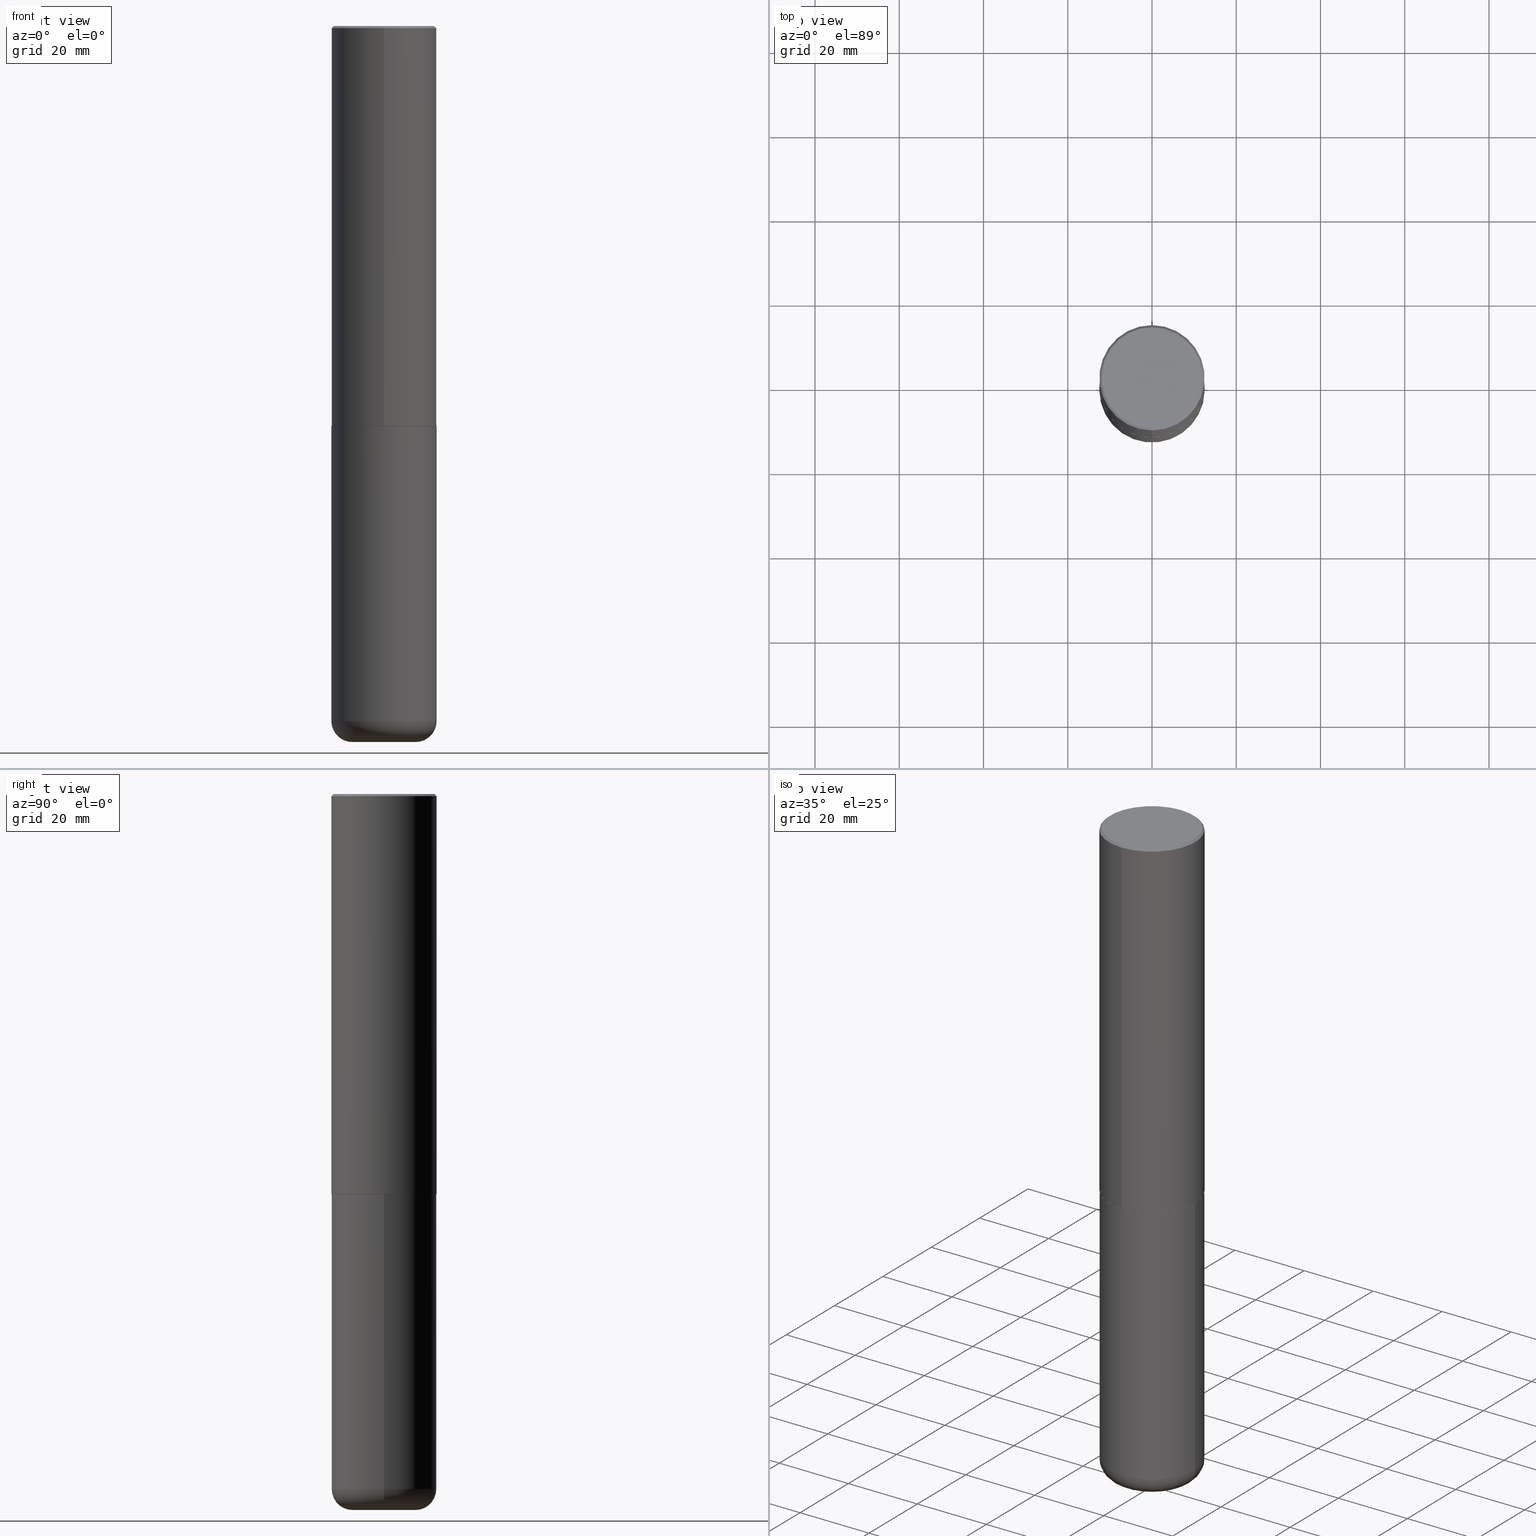
[diagram: canonical four-view strip — front | top / right | iso, engineering-drawing reading convention]
A machine part, canonical four-view strip (front | top / right | iso — engineering-drawing reading convention). The complete STEP part file that produces these views, byte-faithful:
ISO-10303-21;
HEADER;
FILE_DESCRIPTION (( 'STEP AP203' ),
    '1' );
FILE_NAME ('47634.STEP',
    '2024-03-06T19:44:02',
    ( '' ),
    ( '' ),
    'SwSTEP 2.0',
    'SolidWorks 2023',
    '' );
FILE_SCHEMA (( 'CONFIG_CONTROL_DESIGN' ));
ENDSEC;

DATA;
#1 = EDGE_CURVE ( 'NONE', #43, #233, #223, .T. ) ;
#2 = ORIENTED_EDGE ( 'NONE', *, *, #114, .F. ) ;
#3 = DIRECTION ( 'NONE',  ( -2.445976594451651392E-29, 3.490754157143982552E-15, 1.000000000000000000 ) ) ;
#4 = UNCERTAINTY_MEASURE_WITH_UNIT (LENGTH_MEASURE( 1.000000000000000082E-05 ), #309, 'distance_accuracy_value', 'NONE');
#5 = CIRCLE ( 'NONE', #406, 0.2952500000000000124 ) ;
#6 = ORGANIZATION ( 'UNSPECIFIED', 'UNSPECIFIED', '' ) ;
#7 = CARTESIAN_POINT ( 'NONE',  ( 9.148197060908621523E-29, -1.305576962313420868E-14, -3.740099999999999980 ) ) ;
#8 = FACE_OUTER_BOUND ( 'NONE', #382, .T. ) ;
#9 = DIRECTION ( 'NONE',  ( -6.982962677686265922E-15, -1.000000000000000000, 3.330506545156063496E-15 ) ) ;
#10 = ORIENTED_EDGE ( 'NONE', *, *, #184, .T. ) ;
#11 = ORIENTED_EDGE ( 'NONE', *, *, #386, .F. ) ;
#12 = CYLINDRICAL_SURFACE ( 'NONE', #215, 0.4921500000000000874 ) ;
#13 = CARTESIAN_POINT ( 'NONE',  ( 1.636727817291649742E-28, -2.336813545274328465E-14, -6.692899999999998961 ) ) ;
#14 = EDGE_LOOP ( 'NONE', ( #294, #394, #11, #298 ) ) ;
#15 = CLOSED_SHELL ( 'NONE', ( #95, #295, #18, #105, #227, #170 ) ) ;
#16 = FACE_OUTER_BOUND ( 'NONE', #76, .T. ) ;
#17 = CC_DESIGN_APPROVAL ( #63, ( #232 ) ) ;
#18 = ADVANCED_FACE ( 'NONE', ( #194 ), #73, .F. ) ;
#19 = EDGE_LOOP ( 'NONE', ( #254, #106, #195, #122 ) ) ;
#20 = CARTESIAN_POINT ( 'NONE',  ( 0.4921499999999999764, -3.436665081823295777E-15, 2.399810400207969603E-29 ) ) ;
#21 = FACE_OUTER_BOUND ( 'NONE', #152, .T. ) ;
#22 = CIRCLE ( 'NONE', #93, 0.4921499999999999764 ) ;
#23 = LOCAL_TIME ( 14, 44, 2.000000000000000000, #313 ) ;
#24 = CALENDAR_DATE ( 2024, 6, 3 ) ;
#25 = ADVANCED_FACE ( 'NONE', ( #381 ), #107, .T. ) ;
#26 = APPROVAL_DATE_TIME ( #405, #63 ) ;
#27 = LINE ( 'NONE', #126, #310 ) ;
#28 = MECHANICAL_CONTEXT ( 'NONE', #99, 'mechanical' ) ;
#29 = AXIS2_PLACEMENT_3D ( 'NONE', #48, #411, #190 ) ;
#30 = EDGE_CURVE ( 'NONE', #164, #166, #413, .T. ) ;
#31 = PERSON_AND_ORGANIZATION ( #96, #6 ) ;
#32 = DIRECTION ( 'NONE',  ( 1.000000000000000000, -6.982962677686264344E-15, 4.883557194083111780E-29 ) ) ;
#33 = DIRECTION ( 'NONE',  ( -2.445976594451651952E-29, 3.490754157143982552E-15, 1.000000000000000000 ) ) ;
#34 = DIRECTION ( 'NONE',  ( 6.982962677686265922E-15, 1.000000000000000000, -3.486624039460257331E-15 ) ) ;
#35 = AXIS2_PLACEMENT_3D ( 'NONE', #110, #148, #203 ) ;
#36 = SECURITY_CLASSIFICATION ( '', '', #130 ) ;
#37 = CC_DESIGN_PERSON_AND_ORGANIZATION_ASSIGNMENT ( #31, #163, ( #247 ) ) ;
#38 = DIRECTION ( 'NONE',  ( -2.445468806185136597E-29, 3.491481338843145583E-15, 1.000000000000000000 ) ) ;
#39 = ORIENTED_EDGE ( 'NONE', *, *, #386, .T. ) ;
#40 = AXIS2_PLACEMENT_3D ( 'NONE', #401, #210, #117 ) ;
#41 = ORIENTED_EDGE ( 'NONE', *, *, #123, .F. ) ;
#42 = ADVANCED_FACE ( 'NONE', ( #8 ), #157, .T. ) ;
#43 = VERTEX_POINT ( 'NONE', #62 ) ;
#44 = ORIENTED_EDGE ( 'NONE', *, *, #397, .T. ) ;
#45 = DIRECTION ( 'NONE',  ( -6.982962677686265922E-15, -1.000000000000000000, 3.490754157143982552E-15 ) ) ;
#46 = ORIENTED_EDGE ( 'NONE', *, *, #123, .T. ) ;
#47 = PLANE ( 'NONE',  #379 ) ;
#48 = CARTESIAN_POINT ( 'NONE',  ( 0.000000000000000000, 0.000000000000000000, 0.000000000000000000 ) ) ;
#49 = CARTESIAN_POINT ( 'NONE',  ( 9.145751084314172604E-29, -1.305227886897706845E-14, -3.739100000000000534 ) ) ;
#50 = AXIS2_PLACEMENT_3D ( 'NONE', #102, #100, #225 ) ;
#51 = DIRECTION ( 'NONE',  ( -6.982962677686265922E-15, -1.000000000000000000, 3.490754157143982552E-15 ) ) ;
#52 = CARTESIAN_POINT ( 'NONE',  ( 0.000000000000000000, 0.000000000000000000, 0.000000000000000000 ) ) ;
#53 = DIRECTION ( 'NONE',  ( -6.982962677686265922E-15, -1.000000000000000000, 3.330506545156063496E-15 ) ) ;
#54 = PERSON_AND_ORGANIZATION ( #96, #6 ) ;
#55 = CIRCLE ( 'NONE', #165, 0.4911499999999999755 ) ;
#56 = PRODUCT_DEFINITION_SHAPE ( 'NONE', 'NONE',  #232 ) ;
#57 = ORIENTED_EDGE ( 'NONE', *, *, #131, .F. ) ;
#58 = APPROVAL_DATE_TIME ( #344, #84 ) ;
#59 = CIRCLE ( 'NONE', #207, 0.4921500000000003650 ) ;
#60 = FACE_OUTER_BOUND ( 'NONE', #392, .T. ) ;
#61 = PRODUCT_DEFINITION_FORMATION_WITH_SPECIFIED_SOURCE ( 'ANY', '', #247, .NOT_KNOWN. ) ;
#62 = CARTESIAN_POINT ( 'NONE',  ( 3.436665081823295777E-15, 0.4921499999999998098, -0.02000000000000182188 ) ) ;
#63 = APPROVAL ( #183, 'UNSPECIFIED' ) ;
#64 = DIRECTION ( 'NONE',  ( -6.982962677686265922E-15, -1.000000000000000000, 3.486624039460257331E-15 ) ) ;
#65 = VECTOR ( 'NONE', #90, 39.37007874015748143 ) ;
#66 = CARTESIAN_POINT ( 'NONE',  ( 1.588576536497864771E-28, -2.268066277712507367E-14, -6.495999999999999552 ) ) ;
#67 = EDGE_CURVE ( 'NONE', #127, #233, #228, .T. ) ;
#68 = CARTESIAN_POINT ( 'NONE',  ( 9.146297882013029477E-29, -1.305848935540725085E-14, -3.740100000000000424 ) ) ;
#69 = EDGE_CURVE ( 'NONE', #352, #141, #272, .T. ) ;
#70 = ORIENTED_EDGE ( 'NONE', *, *, #69, .T. ) ;
#71 = CARTESIAN_POINT ( 'NONE',  ( 3.366835455046432084E-15, 0.4721499999999996255, -1.426540264649568516E-15 ) ) ;
#72 = ORIENTED_EDGE ( 'NONE', *, *, #263, .T. ) ;
#73 = PLANE ( 'NONE',  #326 ) ;
#74 = CIRCLE ( 'NONE', #245, 0.4911499999999999755 ) ;
#75 = CARTESIAN_POINT ( 'NONE',  ( -5.420756467185317189E-45, 7.736185299407739239E-31, 2.216193106459615290E-16 ) ) ;
#76 = EDGE_LOOP ( 'NONE', ( #44, #46 ) ) ;
#77 = LOCAL_TIME ( 14, 44, 2.000000000000000000, #249 ) ;
#78 = CARTESIAN_POINT ( 'NONE',  ( 9.146297882013029477E-29, -1.305848935540725085E-14, -3.740100000000000424 ) ) ;
#79 = ORIENTED_EDGE ( 'NONE', *, *, #397, .F. ) ;
#80 = FACE_OUTER_BOUND ( 'NONE', #336, .T. ) ;
#81 = CARTESIAN_POINT ( 'NONE',  ( 3.366467196184149442E-28, 1.402716959511487627E-15, -6.692899999999999849 ) ) ;
#82 = EDGE_LOOP ( 'NONE', ( #361, #160, #70, #282 ) ) ;
#83 =( LENGTH_UNIT ( ) NAMED_UNIT ( * ) SI_UNIT ( $, .METRE. ) );
#84 = APPROVAL ( #340, 'UNSPECIFIED' ) ;
#85 = CARTESIAN_POINT ( 'NONE',  ( -0.4921499999999999764, -1.437263999222282936E-14, -3.740100000000000424 ) ) ;
#86 = DIRECTION ( 'NONE',  ( -2.445468806185136597E-29, 3.491481338843145583E-15, 1.000000000000000000 ) ) ;
#87 = AXIS2_PLACEMENT_3D ( 'NONE', #121, #261, #322 ) ;
#88 = ORIENTED_EDGE ( 'NONE', *, *, #142, .F. ) ;
#89 = DIRECTION ( 'NONE',  ( -2.445976594451651952E-29, 3.490754157143982552E-15, 1.000000000000000000 ) ) ;
#90 = DIRECTION ( 'NONE',  ( -2.445976594451651672E-29, 3.490754157143982552E-15, 1.000000000000000000 ) ) ;
#91 = CARTESIAN_POINT ( 'NONE',  ( 1.588576536497864771E-28, -2.268066277712507367E-14, -6.495999999999999552 ) ) ;
#92 = ORIENTED_EDGE ( 'NONE', *, *, #318, .T. ) ;
#93 = AXIS2_PLACEMENT_3D ( 'NONE', #78, #328, #395 ) ;
#94 = PERSON_AND_ORGANIZATION ( #96, #6 ) ;
#95 = ADVANCED_FACE ( 'NONE', ( #21 ), #274, .T. ) ;
#96 = PERSON ( 'UNSPECIFIED', 'UNSPECIFIED', 'UNSPECIFIED', ('UNSPECIFIED'), ('UNSPECIFIED'), ('UNSPECIFIED') ) ;
#97 = PERSON_AND_ORGANIZATION_ROLE ( 'creator' ) ;
#98 = CIRCLE ( 'NONE', #327, 0.4921499999999999764 ) ;
#99 = APPLICATION_CONTEXT ( 'configuration controlled 3d designs of mechanical parts and assemblies' ) ;
#100 = DIRECTION ( 'NONE',  ( 2.445976594451651952E-29, -3.490754157143982552E-15, -1.000000000000000000 ) ) ;
#101 = EDGE_CURVE ( 'NONE', #352, #109, #187, .T. ) ;
#102 = CARTESIAN_POINT ( 'NONE',  ( 4.891953188903329688E-31, -6.981508314288001687E-17, -0.02000000000000010797 ) ) ;
#103 = ORIENTED_EDGE ( 'NONE', *, *, #360, .F. ) ;
#104 = LOCAL_TIME ( 14, 44, 2.000000000000000000, #220 ) ;
#105 = ADVANCED_FACE ( 'NONE', ( #140 ), #331, .T. ) ;
#106 = ORIENTED_EDGE ( 'NONE', *, *, #250, .T. ) ;
#107 = CONICAL_SURFACE ( 'NONE', #305, 0.4911499999999999755, 0.7853981633980288146 ) ;
#108 = CIRCLE ( 'NONE', #119, 0.1968999999999995754 ) ;
#109 = VERTEX_POINT ( 'NONE', #209 ) ;
#110 = CARTESIAN_POINT ( 'NONE',  ( 0.000000000000000000, 0.000000000000000000, 0.000000000000000000 ) ) ;
#111 = FACE_OUTER_BOUND ( 'NONE', #230, .T. ) ;
#112 = CARTESIAN_POINT ( 'NONE',  ( 0.000000000000000000, 0.000000000000000000, 0.000000000000000000 ) ) ;
#113 = EDGE_LOOP ( 'NONE', ( #292, #72, #359, #325 ) ) ;
#114 = EDGE_CURVE ( 'NONE', #166, #164, #22, .T. ) ;
#115 = CARTESIAN_POINT ( 'NONE',  ( 1.588576536497864771E-28, -2.268066277712507367E-14, -6.495999999999999552 ) ) ;
#116 = CARTESIAN_POINT ( 'NONE',  ( -5.420756467185317189E-45, 7.736185299407739239E-31, 2.216193106459615290E-16 ) ) ;
#117 = DIRECTION ( 'NONE',  ( 6.982962677686265922E-15, 1.000000000000000000, -3.490754157143982552E-15 ) ) ;
#118 = ORIENTED_EDGE ( 'NONE', *, *, #177, .T. ) ;
#119 = AXIS2_PLACEMENT_3D ( 'NONE', #204, #180, #278 ) ;
#120 = FACE_OUTER_BOUND ( 'NONE', #404, .T. ) ;
#121 = CARTESIAN_POINT ( 'NONE',  ( 4.891953188903329688E-31, -6.981508314288001687E-17, -0.02000000000000010797 ) ) ;
#122 = ORIENTED_EDGE ( 'NONE', *, *, #1, .F. ) ;
#123 = EDGE_CURVE ( 'NONE', #275, #240, #350, .T. ) ;
#124 = PERSON_AND_ORGANIZATION ( #96, #6 ) ;
#125 = DATE_AND_TIME ( #410, #409 ) ;
#126 = CARTESIAN_POINT ( 'NONE',  ( 3.489830646685823002E-15, 0.4911499999999869304, -3.740100000000001312 ) ) ;
#127 = VERTEX_POINT ( 'NONE', #139 ) ;
#128 = PERSON_AND_ORGANIZATION ( #96, #6 ) ;
#129 = VECTOR ( 'NONE', #146, 39.37007874015748143 ) ;
#130 = SECURITY_CLASSIFICATION_LEVEL ( 'unclassified' ) ;
#131 = EDGE_CURVE ( 'NONE', #174, #166, #273, .T. ) ;
#132 = AXIS2_PLACEMENT_3D ( 'NONE', #66, #38, #222 ) ;
#133 = LOCAL_TIME ( 14, 44, 2.000000000000000000, #257 ) ;
#134 = CARTESIAN_POINT ( 'NONE',  ( 9.148197060908621523E-29, -1.305576962313420868E-14, -3.740099999999999980 ) ) ;
#135 = DIRECTION ( 'NONE',  ( -2.445468806185136597E-29, 3.491481338843145583E-15, 1.000000000000000000 ) ) ;
#136 = ORIENTED_EDGE ( 'NONE', *, *, #1, .T. ) ;
#137 = APPROVAL ( #283, 'UNSPECIFIED' ) ;
#138 = DIRECTION ( 'NONE',  ( -2.445468806185136877E-29, 3.491481338843145188E-15, 1.000000000000000000 ) ) ;
#139 = CARTESIAN_POINT ( 'NONE',  ( -3.436665081823207030E-15, -0.4921500000000134101, -3.739099999999998758 ) ) ;
#140 = FACE_OUTER_BOUND ( 'NONE', #300, .T. ) ;
#141 = VERTEX_POINT ( 'NONE', #268 ) ;
#142 = EDGE_CURVE ( 'NONE', #251, #353, #55, .T. ) ;
#143 = ORIENTED_EDGE ( 'NONE', *, *, #263, .F. ) ;
#144 = DIRECTION ( 'NONE',  ( -2.445976594451651952E-29, 3.490754157143982552E-15, 1.000000000000000000 ) ) ;
#145 = FACE_OUTER_BOUND ( 'NONE', #14, .T. ) ;
#146 = DIRECTION ( 'NONE',  ( -2.445468806185136877E-29, 3.491481338843145188E-15, 1.000000000000000000 ) ) ;
#147 = AXIS2_PLACEMENT_3D ( 'NONE', #262, #354, #64 ) ;
#148 = DIRECTION ( 'NONE',  ( -2.445976594451651952E-29, 3.490754157143982552E-15, 1.000000000000000000 ) ) ;
#149 = APPROVAL_PERSON_ORGANIZATION ( #124, #63, #408 ) ;
#150 = APPROVAL_ROLE ( '' ) ;
#151 = CARTESIAN_POINT ( 'NONE',  ( 9.148197060908621523E-29, -1.305576962313420868E-14, -3.740099999999999980 ) ) ;
#152 = EDGE_LOOP ( 'NONE', ( #39, #196, #202, #269 ) ) ;
#153 = DATE_TIME_ROLE ( 'creation_date' ) ;
#154 = CARTESIAN_POINT ( 'NONE',  ( -3.307789109625541747E-15, -0.4721499999999996255, 1.869778885941491673E-15 ) ) ;
#155 = CC_DESIGN_PERSON_AND_ORGANIZATION_ASSIGNMENT ( #316, #97, ( #232 ) ) ;
#156 = APPLICATION_PROTOCOL_DEFINITION ( 'international standard', 'config_control_design', 1994, #99 ) ;
#157 = CONICAL_SURFACE ( 'NONE', #50, 0.4921499999999999209, 0.7853981633974467247 ) ;
#158 = MANIFOLD_SOLID_BREP ( 'Body-Move/Copy2[1]', #15 ) ;
#159 = AXIS2_PLACEMENT_3D ( 'NONE', #301, #367, #208 ) ;
#160 = ORIENTED_EDGE ( 'NONE', *, *, #179, .T. ) ;
#161 = CARTESIAN_POINT ( 'NONE',  ( 9.148197060908621523E-29, -1.305576962313420868E-14, -3.740099999999999980 ) ) ;
#162 = FACE_OUTER_BOUND ( 'NONE', #82, .T. ) ;
#163 = PERSON_AND_ORGANIZATION_ROLE ( 'design_owner' ) ;
#164 = VERTEX_POINT ( 'NONE', #267 ) ;
#165 = AXIS2_PLACEMENT_3D ( 'NONE', #7, #242, #200 ) ;
#166 = VERTEX_POINT ( 'NONE', #85 ) ;
#167 = ORIENTED_EDGE ( 'NONE', *, *, #368, .F. ) ;
#168 = CARTESIAN_POINT ( 'NONE',  ( 3.493383360364624690E-15, 0.4911499999999869304, -3.740100000000001312 ) ) ;
#169 = DIRECTION ( 'NONE',  ( -6.982962677686265922E-15, -1.000000000000000000, 3.337287582609300506E-15 ) ) ;
#170 = ADVANCED_FACE ( 'NONE', ( #111 ), #47, .T. ) ;
#171 = DIRECTION ( 'NONE',  ( -1.000000000000000000, 6.982962677686265922E-15, -4.876176775795935793E-29 ) ) ;
#172 = ORIENTED_EDGE ( 'NONE', *, *, #67, .F. ) ;
#173 = CARTESIAN_POINT ( 'NONE',  ( -3.429682119145517860E-15, -0.4911500000000130206, -3.740099999999998204 ) ) ;
#174 = VERTEX_POINT ( 'NONE', #303 ) ;
#175 = AXIS2_PLACEMENT_3D ( 'NONE', #116, #297, #211 ) ;
#176 = CARTESIAN_POINT ( 'NONE',  ( 1.588576536497864771E-28, -2.268066277712507367E-14, -6.495999999999999552 ) ) ;
#177 = EDGE_CURVE ( 'NONE', #141, #164, #338, .T. ) ;
#178 = DIRECTION ( 'NONE',  ( 1.000000000000000000, -6.982962677686270655E-15, 0.000000000000000000 ) ) ;
#179 = EDGE_CURVE ( 'NONE', #109, #352, #5, .T. ) ;
#180 = DIRECTION ( 'NONE',  ( 7.105427357601001859E-15, 1.000000000000000000, -3.491481338843145583E-15 ) ) ;
#181 = AXIS2_PLACEMENT_3D ( 'NONE', #188, #260, #34 ) ;
#182 = PERSON_AND_ORGANIZATION ( #96, #6 ) ;
#183 = APPROVAL_STATUS ( 'not_yet_approved' ) ;
#184 = EDGE_CURVE ( 'NONE', #353, #127, #346, .T. ) ;
#185 = PERSON_AND_ORGANIZATION_ROLE ( 'classification_officer' ) ;
#186 = APPROVAL_ROLE ( '' ) ;
#187 = CIRCLE ( 'NONE', #159, 0.2952500000000000124 ) ;
#188 = CARTESIAN_POINT ( 'NONE',  ( 4.891953188903329688E-31, -6.981508314288001687E-17, -0.02000000000000010797 ) ) ;
#189 = PLANE ( 'NONE',  #279 ) ;
#190 = DIRECTION ( 'NONE',  ( 1.000000000000000000, -6.982962677686265922E-15, 4.876176775795935793E-29 ) ) ;
#191 = AXIS2_PLACEMENT_3D ( 'NONE', #91, #357, #362 ) ;
#192 = DIRECTION ( 'NONE',  ( -6.982962677686265922E-15, -1.000000000000000000, 3.337287582609300506E-15 ) ) ;
#193 = CC_DESIGN_PERSON_AND_ORGANIZATION_ASSIGNMENT ( #54, #255, ( #61 ) ) ;
#194 = FACE_OUTER_BOUND ( 'NONE', #229, .T. ) ;
#195 = ORIENTED_EDGE ( 'NONE', *, *, #67, .T. ) ;
#196 = ORIENTED_EDGE ( 'NONE', *, *, #131, .T. ) ;
#197 = CIRCLE ( 'NONE', #147, 0.4921499999999999209 ) ;
#198 = ADVANCED_FACE ( 'NONE', ( #60 ), #365, .T. ) ;
#199 = CARTESIAN_POINT ( 'NONE',  ( -3.376394089603257868E-15, -0.4921499999999999764, -0.01999999999999839059 ) ) ;
#200 = DIRECTION ( 'NONE',  ( -6.982962677686265922E-15, -1.000000000000000000, 3.337287582609300506E-15 ) ) ;
#201 = CARTESIAN_POINT ( 'NONE',  ( 0.2952499999999999569, -2.474238250771194590E-14, -6.495999999999999552 ) ) ;
#202 = ORIENTED_EDGE ( 'NONE', *, *, #30, .F. ) ;
#203 = DIRECTION ( 'NONE',  ( -6.982962677686265922E-15, -1.000000000000000000, 3.490754157143982552E-15 ) ) ;
#204 = CARTESIAN_POINT ( 'NONE',  ( -0.2952499999999999569, -2.058278534979337620E-14, -6.495999999999999552 ) ) ;
#205 = DIRECTION ( 'NONE',  ( 2.438088387897960049E-29, -3.491481338843145188E-15, -1.000000000000000000 ) ) ;
#206 = CC_DESIGN_DATE_AND_TIME_ASSIGNMENT ( #314, #311, ( #36 ) ) ;
#207 = AXIS2_PLACEMENT_3D ( 'NONE', #319, #299, #9 ) ;
#208 = DIRECTION ( 'NONE',  ( 1.000000000000000000, -6.982962677686273021E-15, 0.000000000000000000 ) ) ;
#209 = CARTESIAN_POINT ( 'NONE',  ( -0.2952500000000000124, -2.022699236424666989E-14, -6.692899999999998961 ) ) ;
#210 = DIRECTION ( 'NONE',  ( 2.445976594451651392E-29, -3.490754157143982552E-15, -1.000000000000000000 ) ) ;
#211 = DIRECTION ( 'NONE',  ( -6.982962677686265922E-15, -1.000000000000000000, 3.490754157143982946E-15 ) ) ;
#212 = DIRECTION ( 'NONE',  ( 1.000000000000000000, -6.982962677686265922E-15, 0.000000000000000000 ) ) ;
#213 = PERSON_AND_ORGANIZATION_ROLE ( 'creator' ) ;
#214 = ORIENTED_EDGE ( 'NONE', *, *, #179, .F. ) ;
#215 = AXIS2_PLACEMENT_3D ( 'NONE', #52, #393, #51 ) ;
#216 = CALENDAR_DATE ( 2024, 6, 3 ) ;
#217 = EDGE_CURVE ( 'NONE', #353, #251, #74, .T. ) ;
#218 = DIRECTION ( 'NONE',  ( 1.000000000000000000, 0.000000000000000000, 0.000000000000000000 ) ) ;
#219 = DIMENSIONAL_EXPONENTS ( 1.000000000000000000, 0.000000000000000000, 0.000000000000000000, 0.000000000000000000, 0.000000000000000000, 0.000000000000000000, 0.000000000000000000 ) ;
#220 = COORDINATED_UNIVERSAL_TIME_OFFSET ( 5, 0, .BEHIND. ) ;
#221 = EDGE_CURVE ( 'NONE', #233, #43, #197, .T. ) ;
#222 = DIRECTION ( 'NONE',  ( 1.000000000000000000, -6.982962677686265922E-15, 0.000000000000000000 ) ) ;
#223 = CIRCLE ( 'NONE', #87, 0.4921499999999999209 ) ;
#224 = CIRCLE ( 'NONE', #296, 0.4921500000000003650 ) ;
#225 = DIRECTION ( 'NONE',  ( 6.982962677686265922E-15, 1.000000000000000000, -3.486624039460257331E-15 ) ) ;
#226 = TOROIDAL_SURFACE ( 'NONE', #372, 0.2952499999999999569, 0.1968999999999996031 ) ;
#227 = ADVANCED_FACE ( 'NONE', ( #162 ), #226, .T. ) ;
#228 = LINE ( 'NONE', #277, #65 ) ;
#229 = EDGE_LOOP ( 'NONE', ( #243, #330 ) ) ;
#230 = EDGE_LOOP ( 'NONE', ( #321, #214 ) ) ;
#231 = DIRECTION ( 'NONE',  ( -2.445976594451651952E-29, 3.490754157143982552E-15, 1.000000000000000000 ) ) ;
#232 = PRODUCT_DEFINITION ( 'UNKNOWN', '', #61, #334 ) ;
#233 = VERTEX_POINT ( 'NONE', #317 ) ;
#234 = DIRECTION ( 'NONE',  ( -2.445468806185136597E-29, 3.491481338843145583E-15, 1.000000000000000000 ) ) ;
#235 =( NAMED_UNIT ( * ) PLANE_ANGLE_UNIT ( ) SI_UNIT ( $, .RADIAN. ) );
#236 = AXIS2_PLACEMENT_3D ( 'NONE', #68, #135, #415 ) ;
#237 = CARTESIAN_POINT ( 'NONE',  ( -0.4921499999999999764, 3.496936074043332897E-15, -2.420853904668951509E-29 ) ) ;
#238 = CC_DESIGN_APPROVAL ( #137, ( #36 ) ) ;
#239 = VERTEX_POINT ( 'NONE', #412 ) ;
#240 = VERTEX_POINT ( 'NONE', #71 ) ;
#241 = DIRECTION ( 'NONE',  ( -2.445976594451651672E-29, 3.490754157143982552E-15, 1.000000000000000000 ) ) ;
#242 = DIRECTION ( 'NONE',  ( -2.445976594451651952E-29, 3.490754157143982552E-15, 1.000000000000000000 ) ) ;
#243 = ORIENTED_EDGE ( 'NONE', *, *, #30, .T. ) ;
#244 = CARTESIAN_POINT ( 'NONE',  ( 3.496936074043333291E-15, 0.4921500000000000874, -1.717974658438411319E-15 ) ) ;
#245 = AXIS2_PLACEMENT_3D ( 'NONE', #161, #231, #192 ) ;
#246 = LINE ( 'NONE', #304, #347 ) ;
#247 = PRODUCT ( '47634', '47634', '', ( #28 ) ) ;
#248 = DIRECTION ( 'NONE',  ( 1.000000000000000000, -6.982962677686265922E-15, 4.876176775795935793E-29 ) ) ;
#249 = COORDINATED_UNIVERSAL_TIME_OFFSET ( 5, 0, .BEHIND. ) ;
#250 = EDGE_CURVE ( 'NONE', #239, #127, #59, .T. ) ;
#251 = VERTEX_POINT ( 'NONE', #168 ) ;
#252 = DATE_AND_TIME ( #374, #133 ) ;
#253 = DIRECTION ( 'NONE',  ( 5.024295867790978808E-15, 0.7071067811869604647, 0.7071067811861345698 ) ) ;
#254 = ORIENTED_EDGE ( 'NONE', *, *, #337, .F. ) ;
#255 = PERSON_AND_ORGANIZATION_ROLE ( 'design_supplier' ) ;
#256 = APPROVAL_PERSON_ORGANIZATION ( #94, #84, #186 ) ;
#257 = COORDINATED_UNIVERSAL_TIME_OFFSET ( 5, 0, .BEHIND. ) ;
#258 = CIRCLE ( 'NONE', #132, 0.4921499999999999764 ) ;
#259 = CC_DESIGN_APPROVAL ( #84, ( #61 ) ) ;
#260 = DIRECTION ( 'NONE',  ( 2.445976594451651952E-29, -3.490754157143982552E-15, -1.000000000000000000 ) ) ;
#261 = DIRECTION ( 'NONE',  ( -2.445976594451651952E-29, 3.490754157143982552E-15, 1.000000000000000000 ) ) ;
#262 = CARTESIAN_POINT ( 'NONE',  ( 4.891953188903329688E-31, -6.981508314288001687E-17, -0.02000000000000010797 ) ) ;
#263 = EDGE_CURVE ( 'NONE', #251, #239, #27, .T. ) ;
#264 = AXIS2_PLACEMENT_3D ( 'NONE', #276, #144, #169 ) ;
#265 = EDGE_LOOP ( 'NONE', ( #271, #88 ) ) ;
#266 = ORIENTED_EDGE ( 'NONE', *, *, #337, .T. ) ;
#267 = CARTESIAN_POINT ( 'NONE',  ( 0.4921499999999999764, -1.649515443723054663E-14, -3.740100000000000424 ) ) ;
#268 = CARTESIAN_POINT ( 'NONE',  ( 0.4921499999999997543, -2.611732785894836787E-14, -6.495999999999999552 ) ) ;
#269 = ORIENTED_EDGE ( 'NONE', *, *, #177, .F. ) ;
#270 = DIRECTION ( 'NONE',  ( 4.937700262164540154E-15, 0.7071067811865440200, -0.7071067811865511255 ) ) ;
#271 = ORIENTED_EDGE ( 'NONE', *, *, #217, .F. ) ;
#272 = CIRCLE ( 'NONE', #356, 0.1968999999999995754 ) ;
#273 = LINE ( 'NONE', #237, #320 ) ;
#274 = CYLINDRICAL_SURFACE ( 'NONE', #414, 0.4921499999999999764 ) ;
#275 = VERTEX_POINT ( 'NONE', #154 ) ;
#276 = CARTESIAN_POINT ( 'NONE',  ( 9.148197060908621523E-29, -1.305576962313420868E-14, -3.740099999999999980 ) ) ;
#277 = CARTESIAN_POINT ( 'NONE',  ( -3.436665081823296565E-15, -0.4921500000000000874, 1.717974658438411319E-15 ) ) ;
#278 = DIRECTION ( 'NONE',  ( -1.000000000000000000, 7.105427357601008170E-15, 0.000000000000000000 ) ) ;
#279 = AXIS2_PLACEMENT_3D ( 'NONE', #151, #3, #45 ) ;
#280 = DIRECTION ( 'NONE',  ( -2.445976594451651952E-29, 3.490754157143982552E-15, 1.000000000000000000 ) ) ;
#281 = ORIENTED_EDGE ( 'NONE', *, *, #221, .F. ) ;
#282 = ORIENTED_EDGE ( 'NONE', *, *, #290, .F. ) ;
#283 = APPROVAL_STATUS ( 'not_yet_approved' ) ;
#284 = TOROIDAL_SURFACE ( 'NONE', #191, 0.2952499999999999569, 0.1968999999999996031 ) ;
#285 = CC_DESIGN_PERSON_AND_ORGANIZATION_ASSIGNMENT ( #182, #185, ( #36 ) ) ;
#286 = COORDINATED_UNIVERSAL_TIME_OFFSET ( 5, 0, .BEHIND. ) ;
#287 = APPLICATION_PROTOCOL_DEFINITION ( 'international standard', 'config_control_design', 1994, #418 ) ;
#288 = DIRECTION ( 'NONE',  ( -4.937700262167413974E-15, -0.7071067811869555797, 0.7071067811861394548 ) ) ;
#289 = CONICAL_SURFACE ( 'NONE', #264, 0.4911499999999999755, 0.7853981633980288146 ) ;
#290 = EDGE_CURVE ( 'NONE', #174, #141, #258, .T. ) ;
#291 = MANIFOLD_SOLID_BREP ( 'Body-Move/Copy2[2]', #349 ) ;
#292 = ORIENTED_EDGE ( 'NONE', *, *, #217, .T. ) ;
#293 = ADVANCED_FACE ( 'NONE', ( #380 ), #189, .F. ) ;
#294 = ORIENTED_EDGE ( 'NONE', *, *, #101, .T. ) ;
#295 = ADVANCED_FACE ( 'NONE', ( #145 ), #284, .T. ) ;
#296 = AXIS2_PLACEMENT_3D ( 'NONE', #49, #280, #53 ) ;
#297 = DIRECTION ( 'NONE',  ( -2.445976594451651952E-29, 3.490754157143982552E-15, 1.000000000000000000 ) ) ;
#298 = ORIENTED_EDGE ( 'NONE', *, *, #69, .F. ) ;
#299 = DIRECTION ( 'NONE',  ( -2.445976594451651952E-29, 3.490754157143982552E-15, 1.000000000000000000 ) ) ;
#300 = EDGE_LOOP ( 'NONE', ( #57, #385, #118, #2 ) ) ;
#301 = CARTESIAN_POINT ( 'NONE',  ( 1.636727817291649742E-28, -2.336813545274328465E-14, -6.692899999999998961 ) ) ;
#302 = FACE_OUTER_BOUND ( 'NONE', #19, .T. ) ;
#303 = CARTESIAN_POINT ( 'NONE',  ( -0.4921499999999997543, -1.918372670308173998E-14, -6.495999999999999552 ) ) ;
#304 = CARTESIAN_POINT ( 'NONE',  ( 3.436665081823295777E-15, 0.4921499999999998098, -0.02000000000000182188 ) ) ;
#305 = AXIS2_PLACEMENT_3D ( 'NONE', #134, #33, #324 ) ;
#306 = ADVANCED_FACE ( 'NONE', ( #80 ), #289, .T. ) ;
#307 = LENGTH_MEASURE_WITH_UNIT ( LENGTH_MEASURE( 0.02539999999999999897 ), #83 );
#308 =( NAMED_UNIT ( * ) SI_UNIT ( $, .STERADIAN. ) SOLID_ANGLE_UNIT ( ) );
#309 =( CONVERSION_BASED_UNIT ( 'INCH', #307 ) LENGTH_UNIT ( ) NAMED_UNIT ( #219 ) );
#310 = VECTOR ( 'NONE', #253, 39.37007874015748143 ) ;
#311 = DATE_TIME_ROLE ( 'classification_date' ) ;
#312 = APPROVAL_PERSON_ORGANIZATION ( #371, #137, #150 ) ;
#313 = COORDINATED_UNIVERSAL_TIME_OFFSET ( 5, 0, .BEHIND. ) ;
#314 = DATE_AND_TIME ( #216, #104 ) ;
#315 = VECTOR ( 'NONE', #396, 39.37007874015748854 ) ;
#316 = PERSON_AND_ORGANIZATION ( #96, #6 ) ;
#317 = CARTESIAN_POINT ( 'NONE',  ( -3.376394089603257868E-15, -0.4921499999999999764, -0.01999999999999839059 ) ) ;
#318 = EDGE_CURVE ( 'NONE', #127, #239, #224, .T. ) ;
#319 = CARTESIAN_POINT ( 'NONE',  ( 9.145751084314172604E-29, -1.305227886897706845E-14, -3.739100000000000534 ) ) ;
#320 = VECTOR ( 'NONE', #138, 39.37007874015748143 ) ;
#321 = ORIENTED_EDGE ( 'NONE', *, *, #101, .F. ) ;
#322 = DIRECTION ( 'NONE',  ( -6.982962677686265922E-15, -1.000000000000000000, 3.486624039460257331E-15 ) ) ;
#323 = PRODUCT_RELATED_PRODUCT_CATEGORY ( 'detail', '', ( #247 ) ) ;
#324 = DIRECTION ( 'NONE',  ( -6.982962677686265922E-15, -1.000000000000000000, 3.337287582609300506E-15 ) ) ;
#325 = ORIENTED_EDGE ( 'NONE', *, *, #184, .F. ) ;
#326 = AXIS2_PLACEMENT_3D ( 'NONE', #388, #383, #417 ) ;
#327 = AXIS2_PLACEMENT_3D ( 'NONE', #115, #364, #212 ) ;
#328 = DIRECTION ( 'NONE',  ( -2.445468806185136597E-29, 3.491481338843145583E-15, 1.000000000000000000 ) ) ;
#329 = AXIS2_PLACEMENT_3D ( 'NONE', #342, #369, #218 ) ;
#330 = ORIENTED_EDGE ( 'NONE', *, *, #114, .T. ) ;
#331 = CYLINDRICAL_SURFACE ( 'NONE', #29, 0.4921499999999999764 ) ;
#332 = ORIENTED_EDGE ( 'NONE', *, *, #360, .T. ) ;
#333 = LINE ( 'NONE', #244, #384 ) ;
#334 = DESIGN_CONTEXT ( 'detailed design', #418, 'design' ) ;
#335 = LINE ( 'NONE', #199, #315 ) ;
#336 = EDGE_LOOP ( 'NONE', ( #143, #387, #10, #373 ) ) ;
#337 = EDGE_CURVE ( 'NONE', #239, #43, #333, .T. ) ;
#338 = LINE ( 'NONE', #20, #129 ) ;
#339 = DIRECTION ( 'NONE',  ( -6.982962677686265922E-15, -1.000000000000000000, 3.490754157143982946E-15 ) ) ;
#340 = APPROVAL_STATUS ( 'not_yet_approved' ) ;
#341 = CIRCLE ( 'NONE', #389, 0.4721499999999996255 ) ;
#342 = CARTESIAN_POINT ( 'NONE',  ( 0.000000000000000000, 0.000000000000000000, 0.000000000000000000 ) ) ;
#343 = ADVANCED_BREP_SHAPE_REPRESENTATION ( '47634', ( #158, #291, #329 ), #416 ) ;
#344 = DATE_AND_TIME ( #24, #77 ) ;
#345 = CC_DESIGN_PERSON_AND_ORGANIZATION_ASSIGNMENT ( #128, #213, ( #61 ) ) ;
#346 = LINE ( 'NONE', #376, #400 ) ;
#347 = VECTOR ( 'NONE', #270, 39.37007874015748143 ) ;
#348 = EDGE_CURVE ( 'NONE', #109, #174, #108, .T. ) ;
#349 = CLOSED_SHELL ( 'NONE', ( #25, #407, #198, #42, #403, #306, #293, #375 ) ) ;
#350 = CIRCLE ( 'NONE', #175, 0.4721499999999996255 ) ;
#351 = CC_DESIGN_DATE_AND_TIME_ASSIGNMENT ( #125, #153, ( #232 ) ) ;
#352 = VERTEX_POINT ( 'NONE', #399 ) ;
#353 = VERTEX_POINT ( 'NONE', #173 ) ;
#354 = DIRECTION ( 'NONE',  ( -2.445976594451651952E-29, 3.490754157143982552E-15, 1.000000000000000000 ) ) ;
#355 = ORIENTED_EDGE ( 'NONE', *, *, #368, .T. ) ;
#356 = AXIS2_PLACEMENT_3D ( 'NONE', #201, #363, #178 ) ;
#357 = DIRECTION ( 'NONE',  ( -2.445468806185136597E-29, 3.491481338843145583E-15, 1.000000000000000000 ) ) ;
#358 = CC_DESIGN_SECURITY_CLASSIFICATION ( #36, ( #61 ) ) ;
#359 = ORIENTED_EDGE ( 'NONE', *, *, #318, .F. ) ;
#360 = EDGE_CURVE ( 'NONE', #240, #43, #246, .T. ) ;
#361 = ORIENTED_EDGE ( 'NONE', *, *, #348, .F. ) ;
#362 = DIRECTION ( 'NONE',  ( 1.000000000000000000, -6.982962677686264344E-15, 4.883557194083111780E-29 ) ) ;
#363 = DIRECTION ( 'NONE',  ( -6.982962677686266711E-15, -1.000000000000000000, 3.491481338843145583E-15 ) ) ;
#364 = DIRECTION ( 'NONE',  ( -2.445468806185136597E-29, 3.491481338843145583E-15, 1.000000000000000000 ) ) ;
#365 = CONICAL_SURFACE ( 'NONE', #181, 0.4921499999999999209, 0.7853981633974467247 ) ;
#366 = PLANE ( 'NONE',  #40 ) ;
#367 = DIRECTION ( 'NONE',  ( -2.445468806185136597E-29, 3.491481338843145583E-15, 1.000000000000000000 ) ) ;
#368 = EDGE_CURVE ( 'NONE', #275, #233, #335, .T. ) ;
#369 = DIRECTION ( 'NONE',  ( 0.000000000000000000, 0.000000000000000000, 1.000000000000000000 ) ) ;
#370 = ORIENTED_EDGE ( 'NONE', *, *, #221, .T. ) ;
#371 = PERSON_AND_ORGANIZATION ( #96, #6 ) ;
#372 = AXIS2_PLACEMENT_3D ( 'NONE', #176, #234, #32 ) ;
#373 = ORIENTED_EDGE ( 'NONE', *, *, #250, .F. ) ;
#374 = CALENDAR_DATE ( 2024, 6, 3 ) ;
#375 = ADVANCED_FACE ( 'NONE', ( #16 ), #366, .F. ) ;
#376 = CARTESIAN_POINT ( 'NONE',  ( -3.429682119145517860E-15, -0.4911500000000130206, -3.740099999999998204 ) ) ;
#377 = APPROVAL_DATE_TIME ( #252, #137 ) ;
#378 = SHAPE_DEFINITION_REPRESENTATION ( #56, #343 ) ;
#379 = AXIS2_PLACEMENT_3D ( 'NONE', #81, #205, #171 ) ;
#380 = FACE_OUTER_BOUND ( 'NONE', #265, .T. ) ;
#381 = FACE_OUTER_BOUND ( 'NONE', #113, .T. ) ;
#382 = EDGE_LOOP ( 'NONE', ( #167, #79, #332, #136 ) ) ;
#383 = DIRECTION ( 'NONE',  ( 2.438088387897960049E-29, -3.491481338843145188E-15, -1.000000000000000000 ) ) ;
#384 = VECTOR ( 'NONE', #241, 39.37007874015748143 ) ;
#385 = ORIENTED_EDGE ( 'NONE', *, *, #290, .T. ) ;
#386 = EDGE_CURVE ( 'NONE', #141, #174, #98, .T. ) ;
#387 = ORIENTED_EDGE ( 'NONE', *, *, #142, .T. ) ;
#388 = CARTESIAN_POINT ( 'NONE',  ( 9.146297882013029477E-29, -1.305848935540725085E-14, -3.740100000000000424 ) ) ;
#389 = AXIS2_PLACEMENT_3D ( 'NONE', #75, #89, #339 ) ;
#390 = CYLINDRICAL_SURFACE ( 'NONE', #35, 0.4921500000000000874 ) ;
#391 = DIRECTION ( 'NONE',  ( -2.445468806185136597E-29, 3.491481338843145583E-15, 1.000000000000000000 ) ) ;
#392 = EDGE_LOOP ( 'NONE', ( #41, #355, #370, #103 ) ) ;
#393 = DIRECTION ( 'NONE',  ( -2.445976594451651952E-29, 3.490754157143982552E-15, 1.000000000000000000 ) ) ;
#394 = ORIENTED_EDGE ( 'NONE', *, *, #348, .T. ) ;
#395 = DIRECTION ( 'NONE',  ( 1.000000000000000000, -6.982962677686265922E-15, 0.000000000000000000 ) ) ;
#396 = DIRECTION ( 'NONE',  ( -4.851104656540955597E-15, -0.7071067811865487940, -0.7071067811865461294 ) ) ;
#397 = EDGE_CURVE ( 'NONE', #240, #275, #341, .T. ) ;
#398 = DIRECTION ( 'NONE',  ( 1.000000000000000000, -6.982962677686273021E-15, 0.000000000000000000 ) ) ;
#399 = CARTESIAN_POINT ( 'NONE',  ( 0.2952500000000000124, -2.542985518333015688E-14, -6.692899999999998961 ) ) ;
#400 = VECTOR ( 'NONE', #288, 39.37007874015748143 ) ;
#401 = CARTESIAN_POINT ( 'NONE',  ( 3.297005828269567997E-15, 0.4721499999999996255, -1.537349919972549256E-15 ) ) ;
#402 = CALENDAR_DATE ( 2024, 6, 3 ) ;
#403 = ADVANCED_FACE ( 'NONE', ( #302 ), #12, .T. ) ;
#404 = EDGE_LOOP ( 'NONE', ( #92, #266, #281, #172 ) ) ;
#405 = DATE_AND_TIME ( #402, #23 ) ;
#406 = AXIS2_PLACEMENT_3D ( 'NONE', #13, #391, #398 ) ;
#407 = ADVANCED_FACE ( 'NONE', ( #120 ), #390, .T. ) ;
#408 = APPROVAL_ROLE ( '' ) ;
#409 = LOCAL_TIME ( 14, 44, 2.000000000000000000, #286 ) ;
#410 = CALENDAR_DATE ( 2024, 6, 3 ) ;
#411 = DIRECTION ( 'NONE',  ( -2.445468806185136597E-29, 3.491481338843145583E-15, 1.000000000000000000 ) ) ;
#412 = CARTESIAN_POINT ( 'NONE',  ( 3.496936074043380229E-15, 0.4921499999999873198, -3.739100000000002311 ) ) ;
#413 = CIRCLE ( 'NONE', #236, 0.4921499999999999764 ) ;
#414 = AXIS2_PLACEMENT_3D ( 'NONE', #112, #86, #248 ) ;
#415 = DIRECTION ( 'NONE',  ( 1.000000000000000000, -6.982962677686265922E-15, 0.000000000000000000 ) ) ;
#416 =( GEOMETRIC_REPRESENTATION_CONTEXT ( 3 ) GLOBAL_UNCERTAINTY_ASSIGNED_CONTEXT ( ( #4 ) ) GLOBAL_UNIT_ASSIGNED_CONTEXT ( ( #309, #235, #308 ) ) REPRESENTATION_CONTEXT ( 'NONE', 'WORKASPACE' ) );
#417 = DIRECTION ( 'NONE',  ( -1.000000000000000000, 6.982962677686265922E-15, -4.876176775795935793E-29 ) ) ;
#418 = APPLICATION_CONTEXT ( 'configuration controlled 3d designs of mechanical parts and assemblies' ) ;
ENDSEC;
END-ISO-10303-21;
